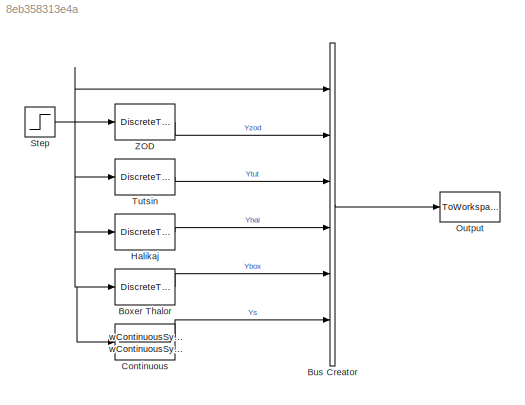
MODEL slx_8eb358313e4a
KIND model
CONFIG StopFcn = save(wSaveFileName,wSaveFileName)
BLOCK [DiscreteTransferFcn] Boxer Thalor
  Denominator = Hbox(2,:)
  InputPortMap = u0
  Numerator = wYboxD
  Ports = [1, 1]
  SampleTime = T
BLOCK [BusCreator] Bus Creator
  DisplayOption = bar
  Inputs = 6
  Ports = [6, 1]
BLOCK [TransferFcn] Continuous
  Denominator = wContinuousSystemDen
  Numerator = wContinuousSystemNum
BLOCK [DiscreteTransferFcn] Halikaj
  Denominator = wYhalD
  InputPortMap = u0
  Numerator = wYhalN
  Ports = [1, 1]
  SampleTime = T
BLOCK [ToWorkspace] Output
  FixptAsFi = on
  MaxDataPoints = inf
  Ports = [1]
  SampleTime = -1
  Save2DSignal = 3-D array (concatenate along third dimension)
  SaveFormat = Timeseries
  VariableName = Ymodel
BLOCK [Step] Step
  SampleTime = 0
  Time = 0
BLOCK [DiscreteTransferFcn] Tutsin
  Denominator = wYtutD
  InputPortMap = u0
  Numerator = wYtutN
  Ports = [1, 1]
  SampleTime = T
BLOCK [DiscreteTransferFcn] ZOD
  Denominator = wYzodD
  InputPortMap = u0
  Numerator = wYzodN
  Ports = [1, 1]
  SampleTime = T
LINE Boxer Thalor:1 -> Bus Creator:5
LINE Bus Creator:1 -> Output:1
LINE Continuous:1 -> Bus Creator:6
LINE Halikaj:1 -> Bus Creator:4
NET Step:1 -> Boxer Thalor:1, Bus Creator:1, Continuous:1, Halikaj:1, Tutsin:1, ZOD:1
LINE Tutsin:1 -> Bus Creator:3
LINE ZOD:1 -> Bus Creator:2
note: NET lines group one-source signal fan-out (src -> all destinations, sorted); 1:1 wires keep LINE
